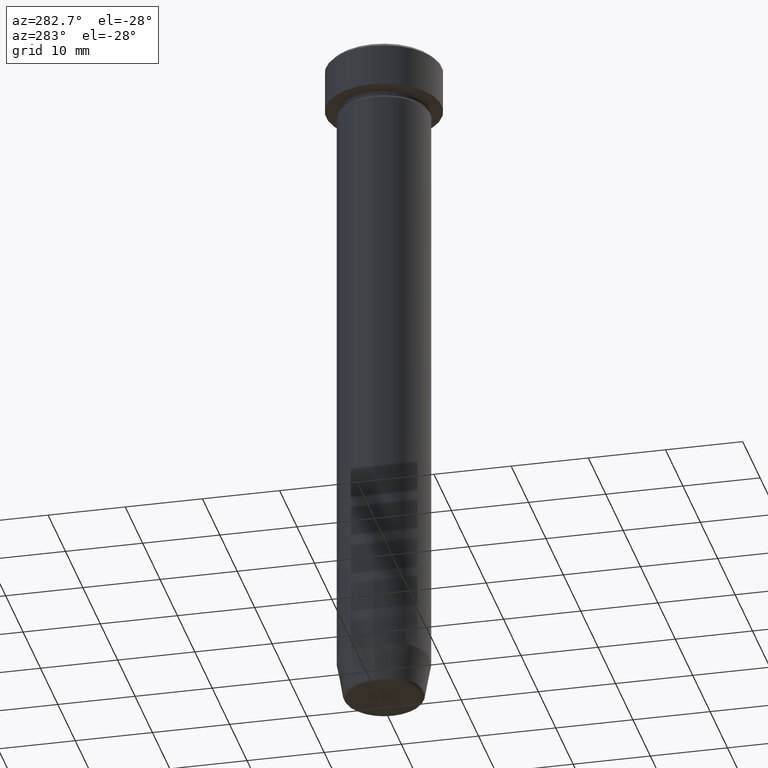
[diagram: clean part render]
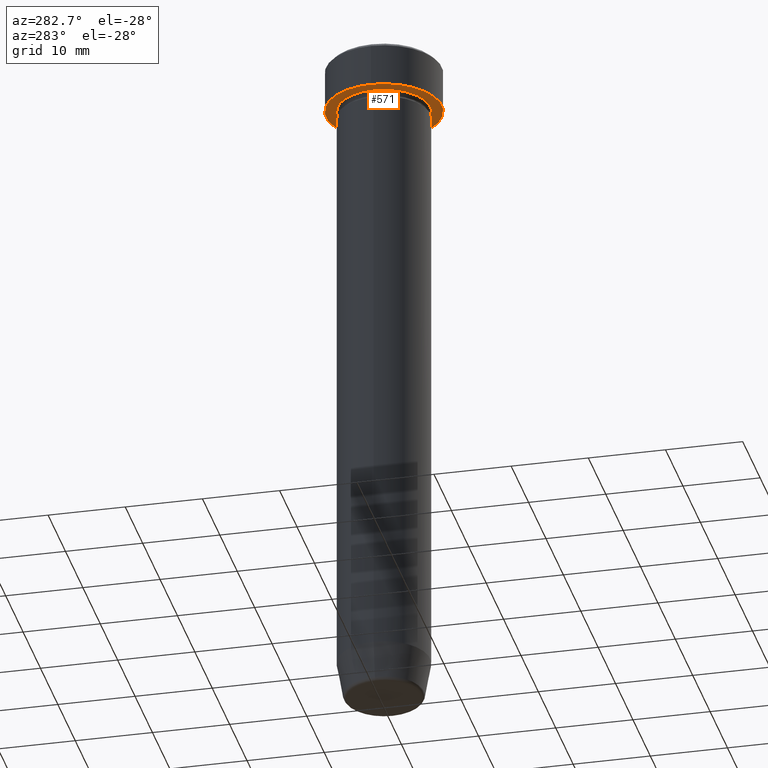
[diagram: same view with one face highlighted and labeled with its STEP entity id]
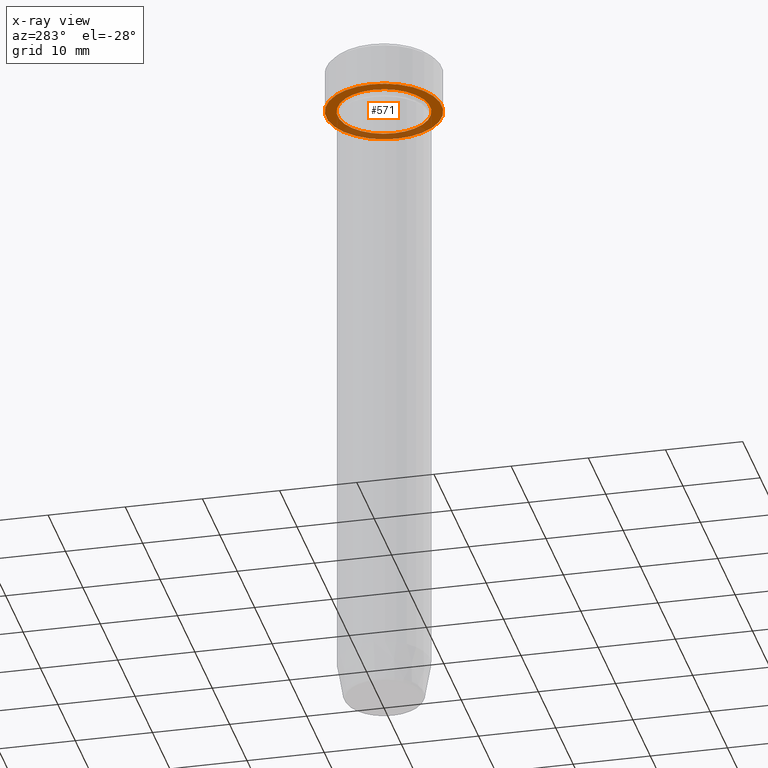
[diagram: x-ray of the same camera — body ghosted, the highlighted face saturated]
A machine part, auxiliary view. The second image highlights one B-rep face of the part: STEP entity #571.
The next image is the same camera in x-ray: the body ghosted, the highlighted face saturated — about 26% of this face is hidden behind the body in this view.
In plain terms, the highlighted planar face has unit normal (0, 0, -1).
Its self-contained STEP definition (entity closure, byte-faithful):
#29 = CIRCLE ( 'NONE', #125, 6.000000000000000000 ) ;
#33 = CARTESIAN_POINT ( 'NONE',  ( -6.000000000000000000, 0.000000000000000000, -6.000000000000000000 ) ) ;
#42 = FACE_OUTER_BOUND ( 'NONE', #104, .T. ) ;
#43 = ORIENTED_EDGE ( 'NONE', *, *, #504, .F. ) ;
#56 = CARTESIAN_POINT ( 'NONE',  ( 0.000000000000000000, 0.000000000000000000, -6.000000000000000000 ) ) ;
#70 = DIRECTION ( 'NONE',  ( -0.000000000000000000, -0.000000000000000000, 1.000000000000000000 ) ) ;
#72 = EDGE_LOOP ( 'NONE', ( #131, #229 ) ) ;
#100 = DIRECTION ( 'NONE',  ( -0.000000000000000000, -0.000000000000000000, 1.000000000000000000 ) ) ;
#104 = EDGE_LOOP ( 'NONE', ( #43, #509 ) ) ;
#106 = CIRCLE ( 'NONE', #420, 7.500000000000000000 ) ;
#125 = AXIS2_PLACEMENT_3D ( 'NONE', #143, #562, #330 ) ;
#131 = ORIENTED_EDGE ( 'NONE', *, *, #279, .T. ) ;
#143 = CARTESIAN_POINT ( 'NONE',  ( 0.000000000000000000, 0.000000000000000000, -6.000000000000000000 ) ) ;
#190 = EDGE_CURVE ( 'NONE', #417, #289, #547, .T. ) ;
#229 = ORIENTED_EDGE ( 'NONE', *, *, #340, .T. ) ;
#231 = FACE_BOUND ( 'NONE', #72, .T. ) ;
#244 = DIRECTION ( 'NONE',  ( -1.000000000000000000, 0.000000000000000000, 0.000000000000000000 ) ) ;
#260 = CARTESIAN_POINT ( 'NONE',  ( 0.000000000000000000, 0.000000000000000000, -6.000000000000000000 ) ) ;
#261 = AXIS2_PLACEMENT_3D ( 'NONE', #516, #477, #244 ) ;
#279 = EDGE_CURVE ( 'NONE', #515, #380, #29, .T. ) ;
#289 = VERTEX_POINT ( 'NONE', #383 ) ;
#307 = CARTESIAN_POINT ( 'NONE',  ( 6.000000000000000000, 7.347880794884119736E-16, -6.000000000000000000 ) ) ;
#327 = DIRECTION ( 'NONE',  ( 0.000000000000000000, 0.000000000000000000, -1.000000000000000000 ) ) ;
#330 = DIRECTION ( 'NONE',  ( -1.000000000000000000, 0.000000000000000000, 0.000000000000000000 ) ) ;
#331 = AXIS2_PLACEMENT_3D ( 'NONE', #503, #327, #418 ) ;
#340 = EDGE_CURVE ( 'NONE', #380, #515, #590, .T. ) ;
#344 = AXIS2_PLACEMENT_3D ( 'NONE', #56, #100, #564 ) ;
#348 = DIRECTION ( 'NONE',  ( 1.000000000000000000, 0.000000000000000000, 0.000000000000000000 ) ) ;
#380 = VERTEX_POINT ( 'NONE', #307 ) ;
#383 = CARTESIAN_POINT ( 'NONE',  ( 7.500000000000000000, 0.000000000000000000, -6.000000000000000000 ) ) ;
#412 = PLANE ( 'NONE',  #331 ) ;
#417 = VERTEX_POINT ( 'NONE', #580 ) ;
#418 = DIRECTION ( 'NONE',  ( -1.000000000000000000, 0.000000000000000000, -0.000000000000000000 ) ) ;
#420 = AXIS2_PLACEMENT_3D ( 'NONE', #260, #70, #348 ) ;
#477 = DIRECTION ( 'NONE',  ( -0.000000000000000000, -0.000000000000000000, 1.000000000000000000 ) ) ;
#503 = CARTESIAN_POINT ( 'NONE',  ( 0.000000000000000000, 7.500000000000000000, -6.000000000000000000 ) ) ;
#504 = EDGE_CURVE ( 'NONE', #289, #417, #106, .T. ) ;
#509 = ORIENTED_EDGE ( 'NONE', *, *, #190, .F. ) ;
#515 = VERTEX_POINT ( 'NONE', #33 ) ;
#516 = CARTESIAN_POINT ( 'NONE',  ( 0.000000000000000000, 0.000000000000000000, -6.000000000000000000 ) ) ;
#547 = CIRCLE ( 'NONE', #344, 7.500000000000000000 ) ;
#562 = DIRECTION ( 'NONE',  ( -0.000000000000000000, -0.000000000000000000, 1.000000000000000000 ) ) ;
#564 = DIRECTION ( 'NONE',  ( 1.000000000000000000, 0.000000000000000000, 0.000000000000000000 ) ) ;
#571 = ADVANCED_FACE ( 'NONE', ( #231, #42 ), #412, .T. ) ;
#580 = CARTESIAN_POINT ( 'NONE',  ( -7.500000000000000000, 9.184850993605147944E-16, -6.000000000000000000 ) ) ;
#590 = CIRCLE ( 'NONE', #261, 6.000000000000000000 ) ;